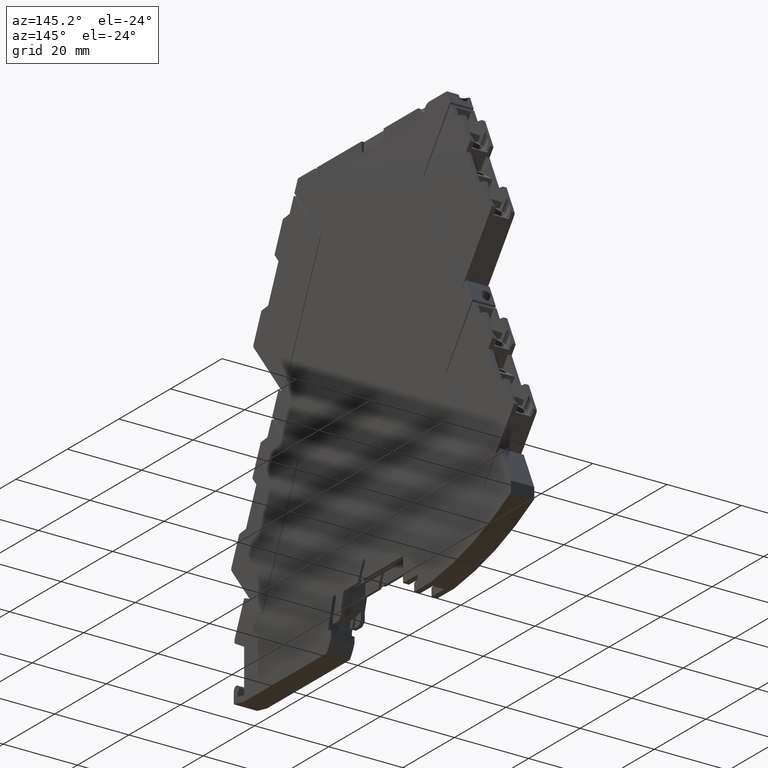
[diagram: clean part render]
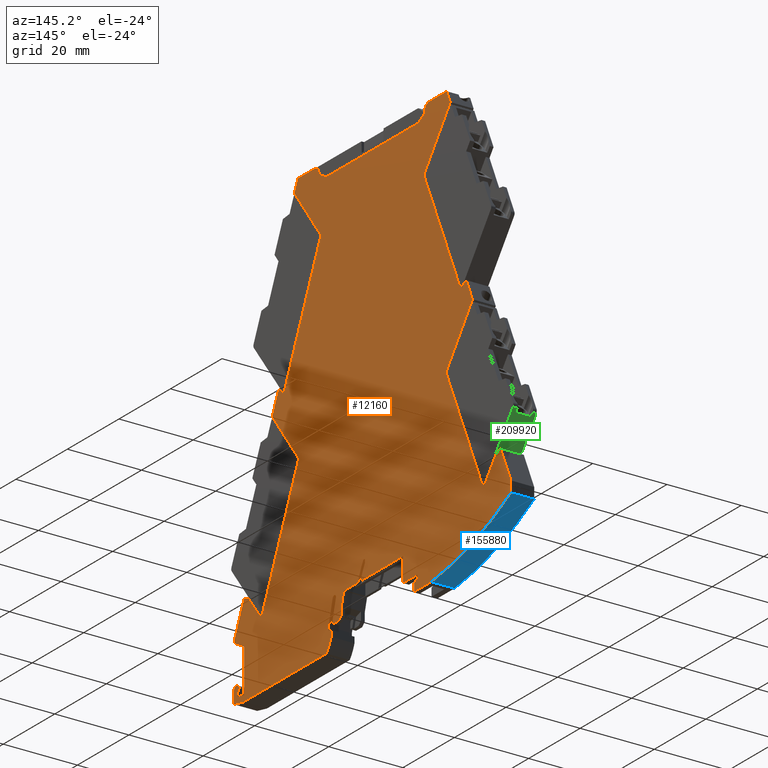
[diagram: same view with three faces highlighted in distinct colors, each labeled with its STEP entity id]
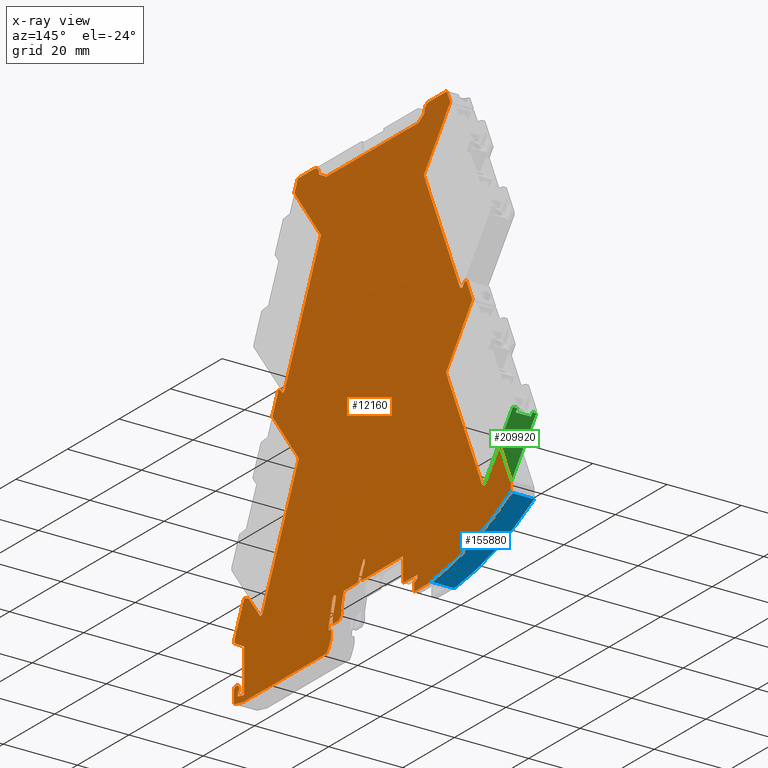
[diagram: x-ray of the same camera — body ghosted, the three highlighted faces saturated]
A machine part, auxiliary view with three faces highlighted in distinct colors.
The next image is the same camera in x-ray (body ghosted, the three faces saturated) — at least one of them is partly hidden behind the body in this view.
Their STEP definitions:

[orange] entity #12160 — the highlighted planar face has unit normal (1, 0, -0).
#6070=CARTESIAN_POINT('',(31.0485699480267,80.7880698552188,
-8.40000000027808));
#6080=DIRECTION('',(-2.52435655550486E-29,6.5458857184374E-15,1.));
#6090=DIRECTION('',(1.,2.53410721992579E-21,2.52435489670724E-29));
#6100=AXIS2_PLACEMENT_3D('',#6070,#6080,#6090);
#6110=PLANE('',#6100);
#6120=CARTESIAN_POINT('',(-36.7492764080997,-5.05673846836052,
-8.40000000026993));
#6130=DIRECTION('',(8.87912561076062E-12,-6.5458857184369E-15,-1.));
#6140=DIRECTION('',(-1.,-1.11022302459215E-16,-8.87912561076062E-12));
#6150=AXIS2_PLACEMENT_3D('',#6120,#6130,#6140);
#6160=CIRCLE('',#6150,1.);
#6170=CARTESIAN_POINT('',(-37.7492764080997,-5.05673846836052,
-8.40000000027881));
#6180=VERTEX_POINT('',#6170);
#6190=CARTESIAN_POINT('',(-36.1659430747663,-5.86897133042793,
-8.40000000026474));
#6200=VERTEX_POINT('',#6190);
#6210=EDGE_CURVE('',#6180,#6200,#6160,.T.);
#6220=ORIENTED_EDGE('',*,*,#6210,.F.);
#6230=CARTESIAN_POINT('',(-36.0492764080996,-6.03141790284141,
-8.40000000026371));
#6240=DIRECTION('',(8.87912561076062E-12,-6.5458857184369E-15,-1.));
#6250=DIRECTION('',(-1.11022302401093E-16,1.,-6.54588571843789E-15));
#6260=AXIS2_PLACEMENT_3D('',#6230,#6240,#6250);
#6270=CIRCLE('',#6260,0.2);
#6280=CARTESIAN_POINT('',(-36.2492764080996,-6.03141790284142,
-8.40000000026548));
#6290=VERTEX_POINT('',#6280);
#6300=EDGE_CURVE('',#6290,#6200,#6270,.T.);
#6310=ORIENTED_EDGE('',*,*,#6300,.T.);
#6320=CARTESIAN_POINT('',(-36.2492764080996,-1.97775086122127E-13,
-8.40000000026552));
#6330=DIRECTION('',(1.11022302401093E-16,-1.,6.54588571843789E-15));
#6340=VECTOR('',#6330,1.);
#6350=LINE('',#6320,#6340);
#6360=CARTESIAN_POINT('',(-36.2492764080996,-6.89999999999169,
-8.40000000026548));
#6370=VERTEX_POINT('',#6360);
#6380=EDGE_CURVE('',#6290,#6370,#6350,.T.);
#6390=ORIENTED_EDGE('',*,*,#6380,.F.);
#6400=CARTESIAN_POINT('',(1.15118559195513,-15.0305352173948,
-8.39999999993334));
#6410=DIRECTION('',(0.977176363922801,-0.212429644331041,
8.67786027047508E-12));
#6420=VECTOR('',#6410,1.);
#6430=LINE('',#6400,#6420);
#6440=CARTESIAN_POINT('',(-33.7492764080996,-7.44347826086124,
-8.40000000024328));
#6450=VERTEX_POINT('',#6440);
#6460=EDGE_CURVE('',#6370,#6450,#6430,.T.);
#6470=ORIENTED_EDGE('',*,*,#6460,.F.);
#6480=CARTESIAN_POINT('',(-33.7492764080996,-10.2999999999919,
-8.40000000024326));
#6490=DIRECTION('',(-1.11022302401093E-16,1.,-6.54588571843789E-15));
#6500=VECTOR('',#6490,1.);
#6510=LINE('',#6480,#6500);
#6520=CARTESIAN_POINT('',(-33.7492764080996,4.29059892324946,
-8.40000000024335));
#6530=VERTEX_POINT('',#6520);
#6540=EDGE_CURVE('',#6450,#6530,#6510,.T.);
#6550=ORIENTED_EDGE('',*,*,#6540,.F.);
#6560=CARTESIAN_POINT('',(16.0007235920431,-24.4325769690169,
-8.39999999980143));
#6570=DIRECTION('',(-0.866025403784439,0.5,-7.69282128517094E-12));
#6580=VECTOR('',#6570,1.);
#6590=LINE('',#6560,#6580);
#6600=CARTESIAN_POINT('',(-37.4826881752487,6.44608521200866,
-8.40000000027652));
#6610=VERTEX_POINT('',#6600);
#6620=EDGE_CURVE('',#6530,#6610,#6590,.T.);
#6630=ORIENTED_EDGE('',*,*,#6620,.F.);
#6640=CARTESIAN_POINT('',(-37.4826881752487,-1.97912019210798E-13,
-8.40000000027647));
#6650=DIRECTION('',(-5.81221700274194E-26,-1.,6.5458857184369E-15));
#6660=VECTOR('',#6650,1.);
#6670=LINE('',#6640,#6660);
#6680=CARTESIAN_POINT('',(-37.4826881752486,7.38850589467896,
-8.40000000027652));
#6690=VERTEX_POINT('',#6680);
#6700=EDGE_CURVE('',#6690,#6610,#6670,.T.);
#6710=ORIENTED_EDGE('',*,*,#6700,.T.);
#6720=CARTESIAN_POINT('',(-47.5435969064633,-15.7499999999871,
-8.4000000003657));
#6730=DIRECTION('',(-0.398749069928776,-0.917060073948777,
-3.53454010863057E-12));
#6740=VECTOR('',#6730,1.);
#6750=LINE('',#6720,#6740);
#6760=CARTESIAN_POINT('',(-33.7154625218031,16.0525317115858,
-8.40000000024313));
#6770=VERTEX_POINT('',#6760);
#6780=EDGE_CURVE('',#6770,#6690,#6750,.T.);
#6790=ORIENTED_EDGE('',*,*,#6780,.T.);
#6800=CARTESIAN_POINT('',(16.0007235920431,-4.5405873105637,
-8.39999999980156));
#6810=DIRECTION('',(0.923879529460592,-0.382683439730119,
8.20574739335383E-12));
#6820=VECTOR('',#6810,1.);
#6830=LINE('',#6800,#6820);
#6840=CARTESIAN_POINT('',(-32.0991298658879,15.3830247891033,
-8.40000000022877));
#6850=VERTEX_POINT('',#6840);
#6860=EDGE_CURVE('',#6770,#6850,#6830,.T.);
#6870=ORIENTED_EDGE('',*,*,#6860,.F.);
#6880=CARTESIAN_POINT('',(-20.2953199832947,-1.96003881575547E-13,
-8.40000000012386));
#6890=DIRECTION('',(0.608761422684226,-0.79335334514419,
5.41049112021568E-12));
#6900=VECTOR('',#6890,1.);
#6910=LINE('',#6880,#6900);
#6920=CARTESIAN_POINT('',(-27.395125549422,9.25264690874748,
-8.40000000018696));
#6930=VERTEX_POINT('',#6920);
#6940=EDGE_CURVE('',#6850,#6930,#6910,.T.);
#6950=ORIENTED_EDGE('',*,*,#6940,.F.);
#6960=CARTESIAN_POINT('',(16.0007235920431,41.9537642440418,
-8.39999999980186));
#6970=DIRECTION('',(-0.798635514844872,-0.601815016785445,
-7.08724564119859E-12));
#6980=VECTOR('',#6970,1.);
#6990=LINE('',#6960,#6980);
#7000=CARTESIAN_POINT('',(-26.596490034467,9.85446192561595,
-8.40000000017988));
#7010=VERTEX_POINT('',#7000);
#7020=EDGE_CURVE('',#7010,#6930,#6990,.T.);
#7030=ORIENTED_EDGE('',*,*,#7020,.T.);
#7040=CARTESIAN_POINT('',(-37.6816886008946,-15.6397493820656,
-8.40000000027814));
#7050=DIRECTION('',(-0.398749068924602,-0.917060074385404,
-3.53454009971152E-12));
#7060=VECTOR('',#7050,1.);
#7070=LINE('',#7040,#7060);
#7080=CARTESIAN_POINT('',(-12.5490777100436,42.161298467958,
-8.40000000005536));
#7090=VERTEX_POINT('',#7080);
#7100=EDGE_CURVE('',#7090,#7010,#7070,.T.);
#7110=ORIENTED_EDGE('',*,*,#7100,.T.);
#7120=CARTESIAN_POINT('',(30.3030289597346,-15.749999999987,
-8.39999999967449));
#7130=DIRECTION('',(-0.594822786743645,0.803856860622912,
-5.28676819478312E-12));
#7140=VECTOR('',#7130,1.);
#7150=LINE('',#7120,#7140);
#7160=CARTESIAN_POINT('',(-22.8222550002825,56.0447007672601,
-8.40000000014667));
#7170=VERTEX_POINT('',#7160);
#7180=EDGE_CURVE('',#7090,#7170,#7150,.T.);
#7190=ORIENTED_EDGE('',*,*,#7180,.F.);
#7200=CARTESIAN_POINT('',(-22.8222550002825,-1.96284421315774E-13,
-8.4000000001463));
#7210=DIRECTION('',(-5.81221700274194E-26,-1.,6.5458857184369E-15));
#7220=VECTOR('',#7210,1.);
#7230=LINE('',#7200,#7220);
#7240=CARTESIAN_POINT('',(-22.8222550002825,56.1522509362226,
-8.40000000014667));
#7250=VERTEX_POINT('',#7240);
#7260=EDGE_CURVE('',#7250,#7170,#7230,.T.);
#7270=ORIENTED_EDGE('',*,*,#7260,.T.);
#7280=CARTESIAN_POINT('',(-54.0862434948307,-15.7499999999871,
-8.40000000042379));
#7290=DIRECTION('',(-0.39874906892458,-0.917060074385414,
-3.53454009971132E-12));
#7300=VECTOR('',#7290,1.);
#7310=LINE('',#7280,#7300);
#7320=CARTESIAN_POINT('',(-20.4270229818225,61.6609074427903,
-8.40000000012544));
#7330=VERTEX_POINT('',#7320);
#7340=EDGE_CURVE('',#7330,#7250,#7310,.T.);
#7350=ORIENTED_EDGE('',*,*,#7340,.T.);
#7360=CARTESIAN_POINT('',(16.0007235920431,46.5720404249845,
-8.39999999980189));
#7370=DIRECTION('',(0.923879529460593,-0.382683439730116,
8.20574739335384E-12));
#7380=VECTOR('',#7370,1.);
#7390=LINE('',#7360,#7380);
#7400=CARTESIAN_POINT('',(-19.618856654371,61.3261539817587,
-8.40000000011826));
#7410=VERTEX_POINT('',#7400);
#7420=EDGE_CURVE('',#7330,#7410,#7390,.T.);
#7430=ORIENTED_EDGE('',*,*,#7420,.F.);
#7440=CARTESIAN_POINT('',(27.4383555880533,-1.90704499971027E-13,
-8.39999999970003));
#7450=DIRECTION('',(0.608761422684226,-0.79335334514419,
5.41049112021568E-12));
#7460=VECTOR('',#7450,1.);
#7470=LINE('',#7440,#7460);
#7480=CARTESIAN_POINT('',(-18.7951253488245,60.2526464262474,
-8.40000000011094));
#7490=VERTEX_POINT('',#7480);
#7500=EDGE_CURVE('',#7410,#7490,#7470,.T.);
#7510=ORIENTED_EDGE('',*,*,#7500,.F.);
#7520=CARTESIAN_POINT('',(16.0007235920431,86.4731988875032,
-8.39999999980216));
#7530=DIRECTION('',(-0.798635514844872,-0.601815016785445,
-7.08724564119859E-12));
#7540=VECTOR('',#7530,1.);
#7550=LINE('',#7520,#7540);
#7560=CARTESIAN_POINT('',(-17.9964898333609,60.8544614453798,
-8.40000000010385));
#7570=VERTEX_POINT('',#7560);
#7580=EDGE_CURVE('',#7570,#7490,#7550,.T.);
#7590=ORIENTED_EDGE('',*,*,#7580,.T.);
#7600=CARTESIAN_POINT('',(-29.0816883997885,35.3602501376983,
-8.40000000020211));
#7610=DIRECTION('',(-0.398749068924602,-0.917060074385404,
-3.53454009971152E-12));
#7620=VECTOR('',#7610,1.);
#7630=LINE('',#7600,#7620);
#7640=CARTESIAN_POINT('',(-3.94907750974744,93.1612979858592,
-8.39999999997934));
#7650=VERTEX_POINT('',#7640);
#7660=EDGE_CURVE('',#7650,#7570,#7630,.T.);
#7670=ORIENTED_EDGE('',*,*,#7660,.T.);
#7680=CARTESIAN_POINT('',(76.6410436289936,-15.749999999987,
-8.39999999926305));
#7690=DIRECTION('',(0.594822786743645,-0.803856860622912,
5.28676819478312E-12));
#7700=VECTOR('',#7690,1.);
#7710=LINE('',#7680,#7700);
#7720=CARTESIAN_POINT('',(-14.2517103911821,107.084507232027,
-8.40000000007091));
#7730=VERTEX_POINT('',#7720);
#7740=EDGE_CURVE('',#7730,#7650,#7710,.T.);
#7750=ORIENTED_EDGE('',*,*,#7740,.T.);
#7760=CARTESIAN_POINT('',(-67.6616742078144,-15.7499999999871,
-8.40000000054433));
#7770=DIRECTION('',(-0.398749068924771,-0.91706007438533,
-3.53454009971302E-12));
#7780=VECTOR('',#7770,1.);
#7790=LINE('',#7760,#7780);
#7800=CARTESIAN_POINT('',(-12.8970555815698,110.20000000016,
-8.4000000000589));
#7810=VERTEX_POINT('',#7800);
#7820=EDGE_CURVE('',#7810,#7730,#7790,.T.);
#7830=ORIENTED_EDGE('',*,*,#7820,.T.);
#7840=CARTESIAN_POINT('',(16.0007235920431,110.200000000008,
-8.39999999980231));
#7850=DIRECTION('',(-1.,-1.11019657239831E-16,-8.87912561076062E-12));
#7860=VECTOR('',#7850,1.);
#7870=LINE('',#7840,#7860);
#7880=CARTESIAN_POINT('',(-6.49927640809768,110.200000000144,
-8.4000000000038));
#7890=VERTEX_POINT('',#7880);
#7900=EDGE_CURVE('',#7890,#7810,#7870,.T.);
#7910=ORIENTED_EDGE('',*,*,#7900,.T.);
#7920=CARTESIAN_POINT('',(-6.49927640809768,108.400000000144,
-8.40000000000208));
#7930=DIRECTION('',(2.33276942258406E-12,9.5452831765337E-13,1.));
#7940=DIRECTION('',(1.,1.11022309450837E-16,-2.33276942258406E-12));
#7950=AXIS2_PLACEMENT_3D('',#7920,#7930,#7940);
#7960=CIRCLE('',#7950,1.8);
#7970=CARTESIAN_POINT('',(-4.69927640809768,108.40000000013,
-8.40000000000628));
#7980=VERTEX_POINT('',#7970);
#7990=EDGE_CURVE('',#7980,#7890,#7960,.T.);
#8000=ORIENTED_EDGE('',*,*,#7990,.T.);
#8010=CARTESIAN_POINT('',(-4.69927640809765,-1.94272412430621E-13,
-8.39999999998539));
#8020=DIRECTION('',(1.11022302397372E-16,-1.,6.54588571843789E-15));
#8030=VECTOR('',#8020,1.);
#8040=LINE('',#8010,#8030);
#8050=CARTESIAN_POINT('',(-4.69927640817636,108.195448267175,
-8.3999999999861));
#8060=VERTEX_POINT('',#8050);
#8070=EDGE_CURVE('',#7980,#8060,#8040,.T.);
#8080=ORIENTED_EDGE('',*,*,#8070,.F.);
#8090=CARTESIAN_POINT('',(15.992839759395,96.2488494276393,
-8.39999999980229));
#8100=DIRECTION('',(0.86602540378293,-0.500000000002613,
7.69282128515756E-12));
#8110=VECTOR('',#8100,1.);
#8120=LINE('',#8090,#8110);
#8130=CARTESIAN_POINT('',(-1.84927640843099,106.550000000118,
-8.39999999996078));
#8140=VERTEX_POINT('',#8130);
#8150=EDGE_CURVE('',#8060,#8140,#8120,.T.);
#8160=ORIENTED_EDGE('',*,*,#8150,.F.);
#8170=CARTESIAN_POINT('',(16.0007235920431,106.550000000064,
-8.39999999980229));
#8180=DIRECTION('',(1.,-3.03140845380314E-12,8.87912561076064E-12));
#8190=VECTOR('',#8180,1.);
#8200=LINE('',#8170,#8190);
#8210=CARTESIAN_POINT('',(33.8507235915408,106.55000000001,
-8.39999999964379));
#8220=VERTEX_POINT('',#8210);
#8230=EDGE_CURVE('',#8140,#8220,#8200,.T.);
#8240=ORIENTED_EDGE('',*,*,#8230,.F.);
#8250=CARTESIAN_POINT('',(16.0086074241903,96.2488494279499,
-8.39999999980215));
#8260=DIRECTION('',(-0.866025403785962,-0.499999999997362,
-7.68627539946604E-12));
#8270=VECTOR('',#8260,1.);
#8280=LINE('',#8250,#8270);
#8290=CARTESIAN_POINT('',(36.2007235915683,107.906773132985,
-8.39999999962294));
#8300=VERTEX_POINT('',#8290);
#8310=EDGE_CURVE('',#8300,#8220,#8280,.T.);
#8320=ORIENTED_EDGE('',*,*,#8310,.T.);
#8330=CARTESIAN_POINT('',(36.2007235915683,-1.89731703905062E-13,
-8.39999999962223));
#8340=DIRECTION('',(1.11022301047922E-16,-1.,6.54588571843789E-15));
#8350=VECTOR('',#8340,1.);
#8360=LINE('',#8330,#8350);
#8370=CARTESIAN_POINT('',(36.2007235915683,108.400000000117,
-8.39999999962294));
#8380=VERTEX_POINT('',#8370);
#8390=EDGE_CURVE('',#8380,#8300,#8360,.T.);
#8400=ORIENTED_EDGE('',*,*,#8390,.T.);
#8410=CARTESIAN_POINT('',(38.000723591985,108.400000000118,
-8.39999999960695));
#8420=DIRECTION('',(-7.50321528832784E-11,3.82693666728665E-11,1.));
#8430=DIRECTION('',(2.8714329709512E-21,1.,-3.82693666728665E-11));
#8440=AXIS2_PLACEMENT_3D('',#8410,#8420,#8430);
#8450=CIRCLE('',#8440,1.79999999999999);
#8460=CARTESIAN_POINT('',(38.000723591985,110.20000000016,
-8.39999999960697));
#8470=VERTEX_POINT('',#8460);
#8480=EDGE_CURVE('',#8470,#8380,#8450,.T.);
#8490=ORIENTED_EDGE('',*,*,#8480,.T.);
#8500=CARTESIAN_POINT('',(16.0007235920431,110.200000000008,
-8.39999999980231));
#8510=DIRECTION('',(1.,1.11022302260128E-16,8.87912561076062E-12));
#8520=VECTOR('',#8510,1.);
#8530=LINE('',#8500,#8520);
#8540=CARTESIAN_POINT('',(44.898502765186,110.20000000016,
-8.39999999954572));
#8550=VERTEX_POINT('',#8540);
#8560=EDGE_CURVE('',#8470,#8550,#8530,.T.);
#8570=ORIENTED_EDGE('',*,*,#8560,.F.);
#8580=CARTESIAN_POINT('',(99.6631213914307,-15.7499999998392,
-8.39999999905848));
#8590=DIRECTION('',(0.398749068924771,-0.917060074385331,
3.54654604060076E-12));
#8600=VECTOR('',#8590,1.);
#8610=LINE('',#8580,#8600);
#8620=CARTESIAN_POINT('',(46.2531575747983,107.084507232175,
-8.39999999953368));
#8630=VERTEX_POINT('',#8620);
#8640=EDGE_CURVE('',#8550,#8630,#8610,.T.);
#8650=ORIENTED_EDGE('',*,*,#8640,.F.);
#8660=CARTESIAN_POINT('',(-44.6395964453774,-15.7499999998392,
-8.40000000033976));
#8670=DIRECTION('',(-0.594822786743645,-0.803856860622912,
-5.27624428449589E-12));
#8680=VECTOR('',#8670,1.);
#8690=LINE('',#8660,#8680);
#8700=CARTESIAN_POINT('',(35.9505246933637,93.161297986007,
-8.39999999962506));
#8710=VERTEX_POINT('',#8700);
#8720=EDGE_CURVE('',#8630,#8710,#8690,.T.);
#8730=ORIENTED_EDGE('',*,*,#8720,.F.);
#8740=CARTESIAN_POINT('',(61.0831355834047,35.3602501378461,
-8.39999999940137));
#8750=DIRECTION('',(0.398749068924602,-0.917060074385404,
3.54654604059925E-12));
#8760=VECTOR('',#8750,1.);
#8770=LINE('',#8740,#8760);
#8780=CARTESIAN_POINT('',(49.9979370169772,60.8544614455276,
-8.39999999949996));
#8790=VERTEX_POINT('',#8780);
#8800=EDGE_CURVE('',#8710,#8790,#8770,.T.);
#8810=ORIENTED_EDGE('',*,*,#8800,.F.);
#8820=CARTESIAN_POINT('',(16.0007235915731,86.4731988876511,
-8.399999999802));
#8830=DIRECTION('',(0.798635514844873,-0.601815016785445,
7.09512446584562E-12));
#8840=VECTOR('',#8830,1.);
#8850=LINE('',#8820,#8840);
#8860=CARTESIAN_POINT('',(50.7965725324408,60.2526464263953,
-8.39999999949287));
#8870=VERTEX_POINT('',#8860);
#8880=EDGE_CURVE('',#8790,#8870,#8850,.T.);
#8890=ORIENTED_EDGE('',*,*,#8880,.F.);
#8900=CARTESIAN_POINT('',(4.56309159556294,1.47644561573134E-10,
-8.39999999990299));
#8910=DIRECTION('',(-0.608761422684226,-0.79335334514419,
-5.40004715778149E-12));
#8920=VECTOR('',#8910,1.);
#8930=LINE('',#8900,#8920);
#8940=CARTESIAN_POINT('',(51.6203038379872,61.3261539819065,
-8.39999999948557));
#8950=VERTEX_POINT('',#8940);
#8960=EDGE_CURVE('',#8950,#8870,#8930,.T.);
#8970=ORIENTED_EDGE('',*,*,#8960,.T.);
#8980=CARTESIAN_POINT('',(16.0007235915731,46.5720404251324,
-8.39999999980174));
#8990=DIRECTION('',(-0.923879529460593,-0.382683439730116,
-8.20073738922822E-12));
#9000=VECTOR('',#8990,1.);
#9010=LINE('',#8980,#9000);
#9020=CARTESIAN_POINT('',(52.4284701654388,61.6609074429381,
-8.39999999947839));
#9030=VERTEX_POINT('',#9020);
#9040=EDGE_CURVE('',#9030,#8950,#9010,.T.);
#9050=ORIENTED_EDGE('',*,*,#9040,.T.);
#9060=CARTESIAN_POINT('',(86.0876906784469,-15.7499999998392,
-8.39999999917902));
#9070=DIRECTION('',(0.39874906892458,-0.917060074385414,
3.54654604059906E-12));
#9080=VECTOR('',#9070,1.);
#9090=LINE('',#9060,#9080);
#9100=CARTESIAN_POINT('',(54.8237021838729,56.1522509364297,
-8.39999999945724));
#9110=VERTEX_POINT('',#9100);
#9120=EDGE_CURVE('',#9030,#9110,#9090,.T.);
#9130=ORIENTED_EDGE('',*,*,#9120,.F.);
#9140=CARTESIAN_POINT('',(54.823702183873,-1.8766418513572E-13,
-8.39999999945687));
#9150=DIRECTION('',(5.81221700274194E-26,1.,-6.5458857184369E-15));
#9160=VECTOR('',#9150,1.);
#9170=LINE('',#9140,#9160);
#9180=CARTESIAN_POINT('',(54.823702183873,56.0447007673732,
-8.39999999945724));
#9190=VERTEX_POINT('',#9180);
#9200=EDGE_CURVE('',#9190,#9110,#9170,.T.);
#9210=ORIENTED_EDGE('',*,*,#9200,.T.);
#9220=CARTESIAN_POINT('',(1.69841822388164,-15.7499999998392,
-8.39999999992832));
#9230=DIRECTION('',(0.594822786743645,0.803856860622912,
5.27624428449589E-12));
#9240=VECTOR('',#9230,1.);
#9250=LINE('',#9220,#9240);
#9260=CARTESIAN_POINT('',(44.5505248936598,42.1612984681058,
-8.39999999954821));
#9270=VERTEX_POINT('',#9260);
#9280=EDGE_CURVE('',#9270,#9190,#9250,.T.);
#9290=ORIENTED_EDGE('',*,*,#9280,.T.);
#9300=CARTESIAN_POINT('',(69.6831357845108,-15.6397493819178,
-8.39999999932468));
#9310=DIRECTION('',(0.398749068924602,-0.917060074385404,
3.54654604059925E-12));
#9320=VECTOR('',#9310,1.);
#9330=LINE('',#9300,#9320);
#9340=CARTESIAN_POINT('',(58.5979372180832,9.85446192576378,
-8.39999999942327));
#9350=VERTEX_POINT('',#9340);
#9360=EDGE_CURVE('',#9270,#9350,#9330,.T.);
#9370=ORIENTED_EDGE('',*,*,#9360,.F.);
#9380=CARTESIAN_POINT('',(16.0007235920431,41.9537642439283,
-8.39999999980186));
#9390=DIRECTION('',(0.798635514844873,-0.601815016785445,
7.09512446584562E-12));
#9400=VECTOR('',#9390,1.);
#9410=LINE('',#9380,#9400);
#9420=CARTESIAN_POINT('',(59.3965727331085,9.25264690841672,
-8.39999999941633));
#9430=VERTEX_POINT('',#9420);
#9440=EDGE_CURVE('',#9350,#9430,#9410,.T.);
#9450=ORIENTED_EDGE('',*,*,#9440,.F.);
#9460=CARTESIAN_POINT('',(52.2967671672304,-1.87944724875908E-13,
-8.39999999947931));
#9470=DIRECTION('',(-0.608761422684226,-0.793353345144191,
-5.40008277935982E-12));
#9480=VECTOR('',#9470,1.);
#9490=LINE('',#9460,#9480);
#9500=CARTESIAN_POINT('',(64.1005770538573,15.3830247943601,
-8.3999999993746));
#9510=VERTEX_POINT('',#9500);
#9520=EDGE_CURVE('',#9510,#9430,#9490,.T.);
#9530=ORIENTED_EDGE('',*,*,#9520,.T.);
#9540=CARTESIAN_POINT('',(16.0007235920431,-4.54058730691545,
-8.39999999980156));
#9550=DIRECTION('',(-0.923879529460591,-0.382683439730121,
-8.20073738922819E-12));
#9560=VECTOR('',#9550,1.);
#9570=LINE('',#9540,#9560);
#9580=CARTESIAN_POINT('',(65.7169097087608,16.0525317164236,
-8.39999999936026));
#9590=VERTEX_POINT('',#9580);
#9600=EDGE_CURVE('',#9590,#9510,#9570,.T.);
#9610=ORIENTED_EDGE('',*,*,#9600,.T.);
#9620=CARTESIAN_POINT('',(79.5450440541298,-15.749999999987,
-8.39999999923727));
#9630=DIRECTION('',(-0.398749068924908,0.917060074385271,
-3.54654604060197E-12));
#9640=VECTOR('',#9630,1.);
#9650=LINE('',#9620,#9640);
#9660=CARTESIAN_POINT('',(69.750723591901,6.77539492033617,
-8.39999999932438));
#9670=VERTEX_POINT('',#9660);
#9680=EDGE_CURVE('',#9670,#9590,#9650,.T.);
#9690=ORIENTED_EDGE('',*,*,#9680,.T.);
#9700=CARTESIAN_POINT('',(69.750723591901,-15.749999999987,
-8.39999999932423));
#9710=DIRECTION('',(1.11022302400457E-16,-1.,6.54588571843789E-15));
#9720=VECTOR('',#9710,1.);
#9730=LINE('',#9700,#9720);
#9740=CARTESIAN_POINT('',(69.750723591901,3.81290792925418,
-8.39999999932436));
#9750=VERTEX_POINT('',#9740);
#9760=EDGE_CURVE('',#9670,#9750,#9730,.T.);
#9770=ORIENTED_EDGE('',*,*,#9760,.F.);
#9780=CARTESIAN_POINT('',(29.5007235919003,72.9500000000085,
-8.3999999996822));
#9790=DIRECTION('',(-8.87912561076062E-12,6.5458857184369E-15,1.));
#9800=DIRECTION('',(1.,1.11022302459215E-16,8.87912561076062E-12));
#9810=AXIS2_PLACEMENT_3D('',#9780,#9790,#9800);
#9820=CIRCLE('',#9810,80.0000000000001);
#9830=CARTESIAN_POINT('',(38.8654179275423,-6.49999999999153,
-8.39999999959853));
#9840=VERTEX_POINT('',#9830);
#9850=EDGE_CURVE('',#9840,#9750,#9820,.T.);
#9860=ORIENTED_EDGE('',*,*,#9850,.T.);
#9870=CARTESIAN_POINT('',(16.0007235920431,-6.49999999999153,
-8.39999999980155));
#9880=DIRECTION('',(-1.,-1.11022302516409E-16,-8.87912561076062E-12));
#9890=VECTOR('',#9880,1.);
#9900=LINE('',#9870,#9890);
#9910=CARTESIAN_POINT('',(32.2007235919003,-6.49999999999153,
-8.39999999965771));
#9920=VERTEX_POINT('',#9910);
#9930=EDGE_CURVE('',#9840,#9920,#9900,.T.);
#9940=ORIENTED_EDGE('',*,*,#9930,.F.);
#9950=CARTESIAN_POINT('',(32.2007235919003,-10.2999999999919,
-8.39999999965768));
#9960=DIRECTION('',(-1.11022302401093E-16,1.,-6.54588571843789E-15));
#9970=VECTOR('',#9960,1.);
#9980=LINE('',#9950,#9970);
#9990=CARTESIAN_POINT('',(32.2007235919003,-4.35619995559415,
-8.39999999965772));
#10000=VERTEX_POINT('',#9990);
#10010=EDGE_CURVE('',#9920,#10000,#9980,.T.);
#10020=ORIENTED_EDGE('',*,*,#10010,.F.);
#10030=CARTESIAN_POINT('',(16.0007235920431,-11.9103840176385,
-8.39999999980151));
#10040=DIRECTION('',(-0.90630778703665,-0.4226182617407,
-8.04445427226503E-12));
#10050=VECTOR('',#10040,1.);
#10060=LINE('',#10030,#10050);
#10070=CARTESIAN_POINT('',(33.5007235919003,-3.74999999999265,
-8.39999999964618));
#10080=VERTEX_POINT('',#10070);
#10090=EDGE_CURVE('',#10080,#10000,#10060,.T.);
#10100=ORIENTED_EDGE('',*,*,#10090,.T.);
#10110=CARTESIAN_POINT('',(33.5007235919003,-10.2999999999919,
-8.39999999964614));
#10120=DIRECTION('',(1.11022302401093E-16,-1.,6.54588571843789E-15));
#10130=VECTOR('',#10120,1.);
#10140=LINE('',#10110,#10130);
#10150=CARTESIAN_POINT('',(33.5007235919003,-2.79999999999156,
-8.39999999964619));
#10160=VERTEX_POINT('',#10150);
#10170=EDGE_CURVE('',#10160,#10080,#10140,.T.);
#10180=ORIENTED_EDGE('',*,*,#10170,.T.);
#10190=CARTESIAN_POINT('',(16.0007235920431,-2.79999999999156,
-8.39999999980157));
#10200=DIRECTION('',(-1.,-1.11022302516409E-16,-8.87912561076062E-12));
#10210=VECTOR('',#10200,1.);
#10220=LINE('',#10190,#10210);
#10230=CARTESIAN_POINT('',(27.9007235919005,-2.79999999999156,
-8.39999999969591));
#10240=VERTEX_POINT('',#10230);
#10250=EDGE_CURVE('',#10160,#10240,#10220,.T.);
#10260=ORIENTED_EDGE('',*,*,#10250,.F.);
#10270=CARTESIAN_POINT('',(27.9007235919005,-10.2999999999919,
-8.39999999969586));
#10280=DIRECTION('',(-1.11022302401093E-16,1.,-6.54588571843789E-15));
#10290=VECTOR('',#10280,1.);
#10300=LINE('',#10270,#10290);
#10310=CARTESIAN_POINT('',(27.9007235919005,3.70000000000824,
-8.39999999969595));
#10320=VERTEX_POINT('',#10310);
#10330=EDGE_CURVE('',#10240,#10320,#10300,.T.);
#10340=ORIENTED_EDGE('',*,*,#10330,.F.);
#10350=CARTESIAN_POINT('',(1.15118559195512,3.70000000000824,
-8.40000000154305));
#10360=DIRECTION('',(1.,1.11022302459213E-16,8.87912561076062E-12));
#10370=VECTOR('',#10360,1.);
#10380=LINE('',#10350,#10370);
#10390=CARTESIAN_POINT('',(12.1503137597697,3.7000000001435,
-8.40000000144538));
#10400=VERTEX_POINT('',#10390);
#10410=EDGE_CURVE('',#10400,#10320,#10380,.T.);
#10420=ORIENTED_EDGE('',*,*,#10410,.T.);
#10430=CARTESIAN_POINT('',(12.1503137597697,4.2000000001435,
-8.3999999998358));
#10440=DIRECTION('',(-8.87912561076062E-12,6.49014673646192E-15,1.));
#10450=DIRECTION('',(1.,1.11022302459215E-16,8.87912561076062E-12));
#10460=AXIS2_PLACEMENT_3D('',#10430,#10440,#10450);
#10470=CIRCLE('',#10460,0.5);
#10480=CARTESIAN_POINT('',(11.6821030178369,4.37543859663472,
-8.39999999983996));
#10490=VERTEX_POINT('',#10480);
#10500=EDGE_CURVE('',#10490,#10400,#10470,.T.);
#10510=ORIENTED_EDGE('',*,*,#10500,.T.);
#10520=CARTESIAN_POINT('',(33.5007235919018,-3.79999999985613,
-8.39999999964618));
#10530=DIRECTION('',(-8.87912561076062E-12,6.49014673646192E-15,1.));
#10540=DIRECTION('',(1.,1.11022302459215E-16,8.87912561076062E-12));
#10550=AXIS2_PLACEMENT_3D('',#10520,#10530,#10540);
#10560=CIRCLE('',#10550,23.3);
#10570=CARTESIAN_POINT('',(13.0907235918997,7.43930157986456,
-8.39999999982747));
#10580=VERTEX_POINT('',#10570);
#10590=EDGE_CURVE('',#10580,#10490,#10560,.T.);
#10600=ORIENTED_EDGE('',*,*,#10590,.T.);
#10610=CARTESIAN_POINT('',(13.0907235918997,-1.9229737075164E-13,
-8.39999999982743));
#10620=DIRECTION('',(1.11022302401093E-16,-1.,6.54588571843789E-15));
#10630=VECTOR('',#10620,1.);
#10640=LINE('',#10610,#10630);
#10650=CARTESIAN_POINT('',(13.0907235918997,8.45000000014386,
-8.39999999982748));
#10660=VERTEX_POINT('',#10650);
#10670=EDGE_CURVE('',#10660,#10580,#10640,.T.);
#10680=ORIENTED_EDGE('',*,*,#10670,.T.);
#10690=CARTESIAN_POINT('',(1.15118559195512,8.45000000014386,
-8.39999999993349));
#10700=DIRECTION('',(1.,1.11022302459207E-16,8.87912561076062E-12));
#10710=VECTOR('',#10700,1.);
#10720=LINE('',#10690,#10710);
#10730=CARTESIAN_POINT('',(12.5143589710343,8.45000000014386,
-8.3999999998326));
#10740=VERTEX_POINT('',#10730);
#10750=EDGE_CURVE('',#10740,#10660,#10720,.T.);
#10760=ORIENTED_EDGE('',*,*,#10750,.T.);
#10770=CARTESIAN_POINT('',(33.5007235919018,-3.79999999985613,
-8.39999999964618));
#10780=DIRECTION('',(-8.87912561076062E-12,6.49014673646192E-15,1.));
#10790=DIRECTION('',(1.,1.11022302459215E-16,8.87912561076062E-12));
#10800=AXIS2_PLACEMENT_3D('',#10770,#10780,#10790);
#10810=CIRCLE('',#10800,24.3);
#10820=CARTESIAN_POINT('',(10.387091250792,3.70000000000824,
-8.40000000146104));
#10830=VERTEX_POINT('',#10820);
#10840=EDGE_CURVE('',#10740,#10830,#10810,.T.);
#10850=ORIENTED_EDGE('',*,*,#10840,.F.);
#10860=CARTESIAN_POINT('',(16.0007235920431,3.70000000000824,
-8.39999999980161));
#10870=DIRECTION('',(-1.,-1.11022302459215E-16,-8.87912561076062E-12));
#10880=VECTOR('',#10870,1.);
#10890=LINE('',#10860,#10880);
#10900=CARTESIAN_POINT('',(4.89244269033672,3.70000000000824,
-8.39999999990025));
#10910=VERTEX_POINT('',#10900);
#10920=EDGE_CURVE('',#10830,#10910,#10890,.T.);
#10930=ORIENTED_EDGE('',*,*,#10920,.F.);
#10940=CARTESIAN_POINT('',(1.10939196970329,-10.2999999999919,
-8.39999999993374));
#10950=DIRECTION('',(0.260861917169192,0.965376123679685,
2.30990648782818E-12));
#10960=VECTOR('',#10950,1.);
#10970=LINE('',#10940,#10960);
#10980=CARTESIAN_POINT('',(4.00072359190165,0.400000000008041,
-8.39999999990814));
#10990=VERTEX_POINT('',#10980);
#11000=EDGE_CURVE('',#10990,#10910,#10970,.T.);
#11010=ORIENTED_EDGE('',*,*,#11000,.T.);
#11020=CARTESIAN_POINT('',(4.00072359190165,-10.2999999999919,
-8.39999999990807));
#11030=DIRECTION('',(-1.11022302401093E-16,1.,-6.54588571843789E-15));
#11040=VECTOR('',#11030,1.);
#11050=LINE('',#11020,#11040);
#11060=CARTESIAN_POINT('',(4.00072359190165,-1.79999999999194,
-8.39999999990813));
#11070=VERTEX_POINT('',#11060);
#11080=EDGE_CURVE('',#11070,#10990,#11050,.T.);
#11090=ORIENTED_EDGE('',*,*,#11080,.T.);
#11100=CARTESIAN_POINT('',(16.0007235920431,10.2000000001495,
-8.39999999980166));
#11110=DIRECTION('',(0.707106781186548,0.707106781186547,
6.27386129019561E-12));
#11120=VECTOR('',#11110,1.);
#11130=LINE('',#11100,#11120);
#11140=CARTESIAN_POINT('',(3.00072359190204,-2.79999999999155,
-8.399999999917));
#11150=VERTEX_POINT('',#11140);
#11160=EDGE_CURVE('',#11150,#11070,#11130,.T.);
#11170=ORIENTED_EDGE('',*,*,#11160,.T.);
#11180=CARTESIAN_POINT('',(16.0007235920431,-2.79999999999155,
-8.39999999980157));
#11190=DIRECTION('',(-1.,-1.11022302459215E-16,-8.87912561076062E-12));
#11200=VECTOR('',#11190,1.);
#11210=LINE('',#11180,#11200);
#11220=CARTESIAN_POINT('',(0.600723591896554,-2.79999999999155,
-8.39999999993831));
#11230=VERTEX_POINT('',#11220);
#11240=EDGE_CURVE('',#11150,#11230,#11210,.T.);
#11250=ORIENTED_EDGE('',*,*,#11240,.F.);
#11260=CARTESIAN_POINT('',(0.600723591896555,-10.2999999999919,
-8.39999999993826));
#11270=DIRECTION('',(-1.11022302401093E-16,1.,-6.54588571843789E-15));
#11280=VECTOR('',#11270,1.);
#11290=LINE('',#11260,#11280);
#11300=CARTESIAN_POINT('',(0.600723591896554,-1.49226058767275,
-8.39999999993832));
#11310=VERTEX_POINT('',#11300);
#11320=EDGE_CURVE('',#11230,#11310,#11290,.T.);
#11330=ORIENTED_EDGE('',*,*,#11320,.F.);
#11340=CARTESIAN_POINT('',(-1.77928533174095,-10.2999999999919,
-8.39999999995939));
#11350=DIRECTION('',(-0.260861917169191,-0.965376123679685,
-2.30990648782817E-12));
#11360=VECTOR('',#11350,1.);
#11370=LINE('',#11340,#11360);
#11380=CARTESIAN_POINT('',(1.86337090577481,3.18043975384847,
-8.39999999992714));
#11390=VERTEX_POINT('',#11380);
#11400=EDGE_CURVE('',#11390,#11310,#11370,.T.);
#11410=ORIENTED_EDGE('',*,*,#11400,.T.);
#11420=CARTESIAN_POINT('',(1.235876425383,3.35000000000839,
-8.39999999993271));
#11430=DIRECTION('',(8.87912561076062E-12,-6.5458857184369E-15,-1.));
#11440=DIRECTION('',(-1.,-1.11022302459215E-16,-8.87912561076062E-12));
#11450=AXIS2_PLACEMENT_3D('',#11420,#11430,#11440);
#11460=CIRCLE('',#11450,0.65);
#11470=CARTESIAN_POINT('',(0.605938711405617,3.51024505144196,
-8.3999999999383));
#11480=VERTEX_POINT('',#11470);
#11490=EDGE_CURVE('',#11480,#11390,#11460,.T.);
#11500=ORIENTED_EDGE('',*,*,#11490,.T.);
#11510=CARTESIAN_POINT('',(-2.90714421643536,-10.2999999999919,
-8.39999999996941));
#11520=DIRECTION('',(-0.246530848359328,-0.969134944580594,
-2.18263452291688E-12));
#11530=VECTOR('',#11520,1.);
#11540=LINE('',#11510,#11530);
#11550=CARTESIAN_POINT('',(-0.999276408103244,-2.79999999999155,
-8.39999999995251));
#11560=VERTEX_POINT('',#11550);
#11570=EDGE_CURVE('',#11480,#11560,#11540,.T.);
#11580=ORIENTED_EDGE('',*,*,#11570,.F.);
#11590=CARTESIAN_POINT('',(-0.999276408103243,-10.2999999999919,
-8.39999999995247));
#11600=DIRECTION('',(1.11022302401093E-16,-1.,6.54588571843789E-15));
#11610=VECTOR('',#11600,1.);
#11620=LINE('',#11590,#11610);
#11630=CARTESIAN_POINT('',(-0.999276408103243,-3.74999999999137,
-8.39999999995251));
#11640=VERTEX_POINT('',#11630);
#11650=EDGE_CURVE('',#11560,#11640,#11620,.T.);
#11660=ORIENTED_EDGE('',*,*,#11650,.F.);
#11670=CARTESIAN_POINT('',(16.0007235920431,-8.30513627135966,
-8.39999999980154));
#11680=DIRECTION('',(0.965925826289068,-0.25881904510252,
8.57827094218938E-12));
#11690=VECTOR('',#11680,1.);
#11700=LINE('',#11670,#11690);
#11710=CARTESIAN_POINT('',(0.000723591896556769,-4.01794919242244,
-8.39999999994363));
#11720=VERTEX_POINT('',#11710);
#11730=EDGE_CURVE('',#11640,#11720,#11700,.T.);
#11740=ORIENTED_EDGE('',*,*,#11730,.F.);
#11750=CARTESIAN_POINT('',(0.000723591896556991,-10.2999999999919,
-8.39999999994359));
#11760=DIRECTION('',(-5.55111511698355E-17,1.,-6.5458857184374E-15));
#11770=VECTOR('',#11760,1.);
#11780=LINE('',#11750,#11770);
#11790=CARTESIAN_POINT('',(0.000723591896556991,-5.62763633938895,
-8.39999999994362));
#11800=VERTEX_POINT('',#11790);
#11810=EDGE_CURVE('',#11800,#11720,#11780,.T.);
#11820=ORIENTED_EDGE('',*,*,#11810,.T.);
#11830=CARTESIAN_POINT('',(-9.09927640810336,-2.89999999999153,
-8.40000000002444));
#11840=DIRECTION('',(-8.87912561076062E-12,6.5458857184369E-15,1.));
#11850=DIRECTION('',(1.,-3.30054472363818E-27,8.87912561076062E-12));
#11860=AXIS2_PLACEMENT_3D('',#11830,#11840,#11850);
#11870=CIRCLE('',#11860,9.49999999999998);
#11880=CARTESIAN_POINT('',(-1.81641982569014,-8.99999999999154,
-8.39999999995973));
#11890=VERTEX_POINT('',#11880);
#11900=EDGE_CURVE('',#11890,#11800,#11870,.T.);
#11910=ORIENTED_EDGE('',*,*,#11900,.T.);
#11920=CARTESIAN_POINT('',(16.0007235920431,-8.99999999999153,
-8.39999999980153));
#11930=DIRECTION('',(1.,5.38934856045505E-26,8.87912561076062E-12));
#11940=VECTOR('',#11930,1.);
#11950=LINE('',#11920,#11940);
#11960=CARTESIAN_POINT('',(-33.9492764081028,-8.99999999999153,
-8.40000000024504));
#11970=VERTEX_POINT('',#11960);
#11980=EDGE_CURVE('',#11970,#11890,#11950,.T.);
#11990=ORIENTED_EDGE('',*,*,#11980,.T.);
#12000=CARTESIAN_POINT('',(16.0007235920431,-19.5157894737068,
-8.39999999980146));
#12010=DIRECTION('',(-0.978549784986748,0.206010481049847,
-8.69001497834589E-12));
#12020=VECTOR('',#12010,1.);
#12030=LINE('',#12000,#12020);
#12040=CARTESIAN_POINT('',(-37.7492764080997,-8.19999999999217,
-8.40000000027879));
#12050=VERTEX_POINT('',#12040);
#12060=EDGE_CURVE('',#11970,#12050,#12030,.T.);
#12070=ORIENTED_EDGE('',*,*,#12060,.F.);
#12080=CARTESIAN_POINT('',(-37.7492764080997,-10.2999999999919,
-8.40000000027877));
#12090=DIRECTION('',(5.55111511698355E-17,-1.,6.5458857184374E-15));
#12100=VECTOR('',#12090,1.);
#12110=LINE('',#12080,#12100);
#12120=EDGE_CURVE('',#6180,#12050,#12110,.T.);
#12130=ORIENTED_EDGE('',*,*,#12120,.T.);
#12140=EDGE_LOOP('',(#12130,#12070,#11990,#11910,#11820,#11740,#11660,
#11580,#11500,#11410,#11330,#11250,#11170,#11090,#11010,#10930,#10850,
#10760,#10680,#10600,#10510,#10420,#10340,#10260,#10180,#10100,#10020,
#9940,#9860,#9770,#9690,#9610,#9530,#9450,#9370,#9290,#9210,#9130,#9050,
#8970,#8890,#8810,#8730,#8650,#8570,#8490,#8400,#8320,#8240,#8160,#8080,
#8000,#7910,#7830,#7750,#7670,#7590,#7510,#7430,#7350,#7270,#7190,#7110,
#7030,#6950,#6870,#6790,#6710,#6630,#6550,#6470,#6390,#6310,#6220));
#12150=FACE_OUTER_BOUND('',#12140,.T.);
#12160=ADVANCED_FACE('',(#12150),#6110,.T.);

[blue] entity #155880 — the highlighted cylindrical surface (partial cylindrical patch) has radius 80 mm, axis along (1, -0, -0).
#4520=CARTESIAN_POINT('',(38.8654179275983,-6.49999999999157,
-14.6999999993261));
#4530=VERTEX_POINT('',#4520);
#4560=CARTESIAN_POINT('',(29.5007235919562,72.9500000000084,
-14.6999999994091));
#4570=DIRECTION('',(-8.87912561076062E-12,6.5458857184369E-15,1.));
#4580=DIRECTION('',(1.,1.11022302459215E-16,8.87912561076062E-12));
#4590=AXIS2_PLACEMENT_3D('',#4560,#4570,#4580);
#4600=CIRCLE('',#4590,80.0000000000001);
#4610=CARTESIAN_POINT('',(69.7507235919569,3.81290792925414,
-14.699999999052));
#4620=VERTEX_POINT('',#4610);
#4630=EDGE_CURVE('',#4530,#4620,#4600,.T.);
#9740=CARTESIAN_POINT('',(69.750723591901,3.81290792925418,
-8.39999999932436));
#9750=VERTEX_POINT('',#9740);
#9780=CARTESIAN_POINT('',(29.5007235919003,72.9500000000085,
-8.3999999996822));
#9790=DIRECTION('',(-8.87912561076062E-12,6.5458857184369E-15,1.));
#9800=DIRECTION('',(1.,1.11022302459215E-16,8.87912561076062E-12));
#9810=AXIS2_PLACEMENT_3D('',#9780,#9790,#9800);
#9820=CIRCLE('',#9810,80.0000000000001);
#9830=CARTESIAN_POINT('',(38.8654179275423,-6.49999999999153,
-8.39999999959853));
#9840=VERTEX_POINT('',#9830);
#9850=EDGE_CURVE('',#9840,#9750,#9820,.T.);
#135500=CARTESIAN_POINT('',(69.750723591901,3.81290792925418,
-8.39999999932436));
#135510=DIRECTION('',(-8.87912561076062E-12,6.5458857184369E-15,1.));
#135520=VECTOR('',#135510,1.);
#135530=LINE('',#135500,#135520);
#135540=EDGE_CURVE('',#4620,#9750,#135530,.T.);
#154860=CARTESIAN_POINT('',(38.8654179275423,-6.49999999999153,
-8.39999999959853));
#154870=DIRECTION('',(8.87912561076062E-12,-6.5458857184369E-15,-1.));
#154880=VECTOR('',#154870,1.);
#154890=LINE('',#154860,#154880);
#154900=EDGE_CURVE('',#9840,#4530,#154890,.T.);
#155770=CARTESIAN_POINT('',(29.5007235919003,72.9500000000085,
-8.3999999996822));
#155780=DIRECTION('',(-8.87912561076062E-12,6.5458857184369E-15,1.));
#155790=DIRECTION('',(1.,1.11022302459215E-16,8.87912561076062E-12));
#155800=AXIS2_PLACEMENT_3D('',#155770,#155780,#155790);
#155810=CYLINDRICAL_SURFACE('',#155800,80.0000000000001);
#155820=ORIENTED_EDGE('',*,*,#9850,.F.);
#155830=ORIENTED_EDGE('',*,*,#135540,.T.);
#155840=ORIENTED_EDGE('',*,*,#4630,.T.);
#155850=ORIENTED_EDGE('',*,*,#154900,.T.);
#155860=EDGE_LOOP('',(#155850,#155840,#155830,#155820));
#155870=FACE_OUTER_BOUND('',#155860,.T.);
#155880=ADVANCED_FACE('',(#155870),#155810,.T.);

[green] entity #209920 — the highlighted planar face has unit normal (0, 0.7986, -0.6018).
#208160=CARTESIAN_POINT('',(-162.213817258204,-7.45943924316449,
-15.8499999989814));
#208170=VERTEX_POINT('',#208160);
#208200=CARTESIAN_POINT('',(-2.8421709430404E-14,-8.87505648849543,
-15.8500000153268));
#208210=DIRECTION('',(-0.999961923133656,0.00872652753623987,
1.00760561352886E-10));
#208220=VECTOR('',#208210,1.);
#208230=LINE('',#208200,#208220);
#208240=CARTESIAN_POINT('',(-143.476039707816,-7.62296120132963,
-15.8500000008695));
#208250=VERTEX_POINT('',#208240);
#208260=EDGE_CURVE('',#208250,#208170,#208230,.T.);
#208890=CARTESIAN_POINT('',(-143.476039707302,-7.6229612013239,
-10.7500000016419));
#208900=VERTEX_POINT('',#208890);
#208930=CARTESIAN_POINT('',(-143.476039707816,-7.62296120132964,
-15.8500030008695));
#208940=DIRECTION('',(1.00774453169671E-10,1.12575730689631E-12,1.));
#208950=VECTOR('',#208940,1.);
#208960=LINE('',#208930,#208950);
#208970=CARTESIAN_POINT('',(-143.476039707181,-7.62296120132255,
-9.55000000085919));
#208980=VERTEX_POINT('',#208970);
#208990=EDGE_CURVE('',#208900,#208980,#208960,.T.);
#209300=CARTESIAN_POINT('',(-144.481392963863,-7.61418762437656,
-10.7500000014478));
#209310=VERTEX_POINT('',#209300);
#209340=CARTESIAN_POINT('',(-2.8421709430404E-14,-8.87505648848521,
-10.750000029343));
#209350=DIRECTION('',(0.999961923133656,-0.00872652753623984,
-1.93063584216779E-10));
#209360=VECTOR('',#209350,1.);
#209370=LINE('',#209340,#209360);
#209380=EDGE_CURVE('',#209310,#208900,#209370,.T.);
#209500=CARTESIAN_POINT('',(-154.461784543686,-7.52709014604395,
-15.8500000066468));
#209510=DIRECTION('',(-0.00872652753623987,-0.999961923133656,
-4.08728597543074E-11));
#209520=DIRECTION('',(0.999961923133656,-0.00872652753623987,
-7.49745406018438E-11));
#209530=AXIS2_PLACEMENT_3D('',#209500,#209510,#209520);
#209540=PLANE('',#209530);
#209550=ORIENTED_EDGE('',*,*,#208990,.T.);
#209560=ORIENTED_EDGE('',*,*,#209380,.T.);
#209570=CARTESIAN_POINT('',(-144.481392961706,-7.61418762437382,
1.77635683940025E-15));
#209580=DIRECTION('',(-2.00586524973252E-10,-2.54716825528808E-13,-1.));
#209590=VECTOR('',#209580,1.);
#209600=LINE('',#209570,#209590);
#209610=CARTESIAN_POINT('',(-144.481392964693,-7.61418762437754,
-14.8500000014383));
#209620=VERTEX_POINT('',#209610);
#209630=EDGE_CURVE('',#209310,#209620,#209600,.T.);
#209640=ORIENTED_EDGE('',*,*,#209630,.F.);
#209650=CARTESIAN_POINT('',(-2.8421709430404E-14,-8.87505648849344,
-14.8500000293334));
#209660=DIRECTION('',(-0.999961923133656,0.00872652753623984,
1.93063584216779E-10));
#209670=VECTOR('',#209660,1.);
#209680=LINE('',#209650,#209670);
#209690=CARTESIAN_POINT('',(-143.476039707715,-7.62296120132852,
-14.8500000016324));
#209700=VERTEX_POINT('',#209690);
#209710=EDGE_CURVE('',#209700,#209620,#209680,.T.);
#209720=ORIENTED_EDGE('',*,*,#209710,.T.);
#209730=EDGE_CURVE('',#208250,#209700,#208960,.T.);
#209740=ORIENTED_EDGE('',*,*,#209730,.T.);
#209750=ORIENTED_EDGE('',*,*,#208260,.F.);
#209760=CARTESIAN_POINT('',(-162.213817257774,-7.4594392438161,
1.77635683940025E-15));
#209770=DIRECTION('',(2.709351014082E-11,-4.11108573892267E-11,1.));
#209780=VECTOR('',#209770,1.);
#209790=LINE('',#209760,#209780);
#209800=CARTESIAN_POINT('',(-162.213817258033,-7.45943924342349,
-9.54999999895636));
#209810=VERTEX_POINT('',#209800);
#209820=EDGE_CURVE('',#208170,#209810,#209790,.T.);
#209830=ORIENTED_EDGE('',*,*,#209820,.F.);
#209840=CARTESIAN_POINT('',(-2.8421709430404E-14,-8.87505648875294,
-9.55000001542928));
#209850=DIRECTION('',(0.999961923133656,-0.00872652753623987,
-1.01546791808627E-10));
#209860=VECTOR('',#209850,1.);
#209870=LINE('',#209840,#209860);
#209880=EDGE_CURVE('',#209810,#208980,#209870,.T.);
#209890=ORIENTED_EDGE('',*,*,#209880,.F.);
#209900=EDGE_LOOP('',(#209890,#209830,#209750,#209740,#209720,#209640,
#209560,#209550));
#209910=FACE_OUTER_BOUND('',#209900,.T.);
#209920=ADVANCED_FACE('',(#209910),#209540,.T.);